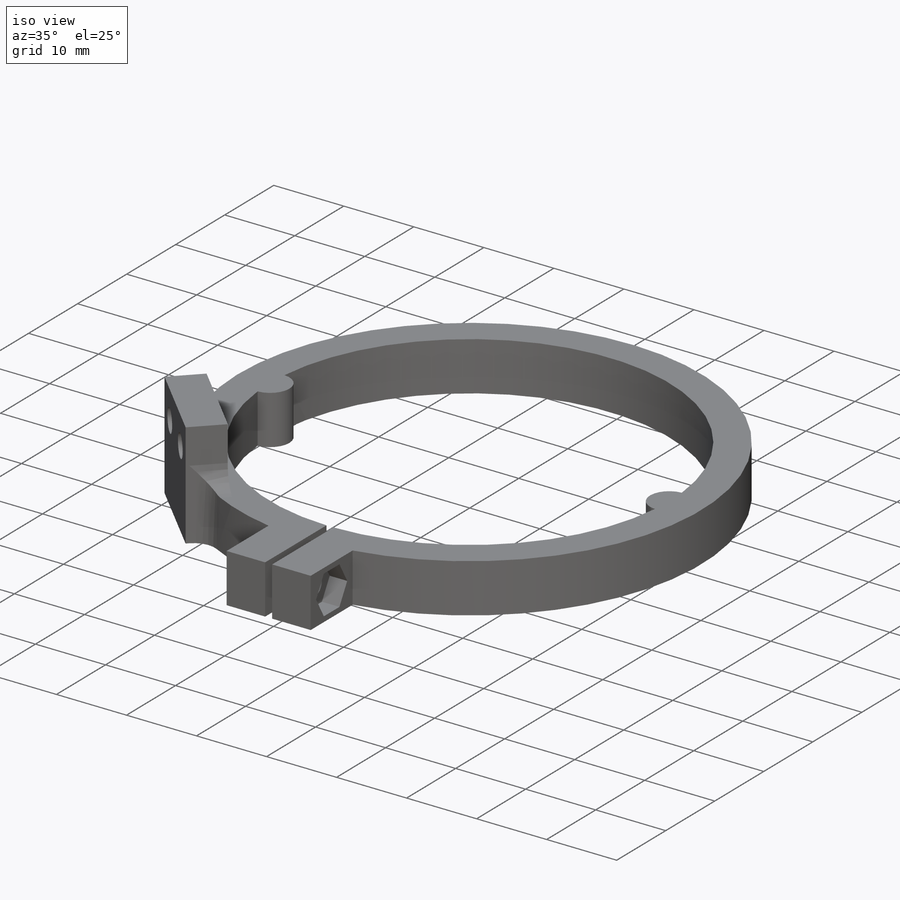
[diagram: iso view]
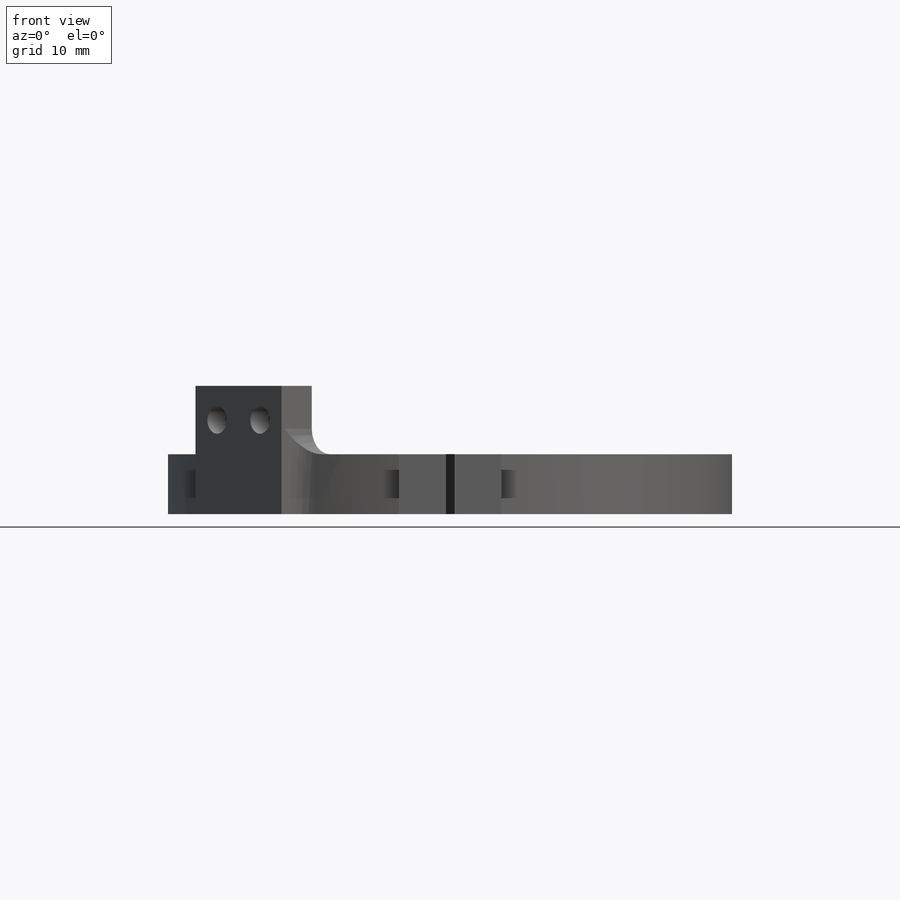
[diagram: front view]
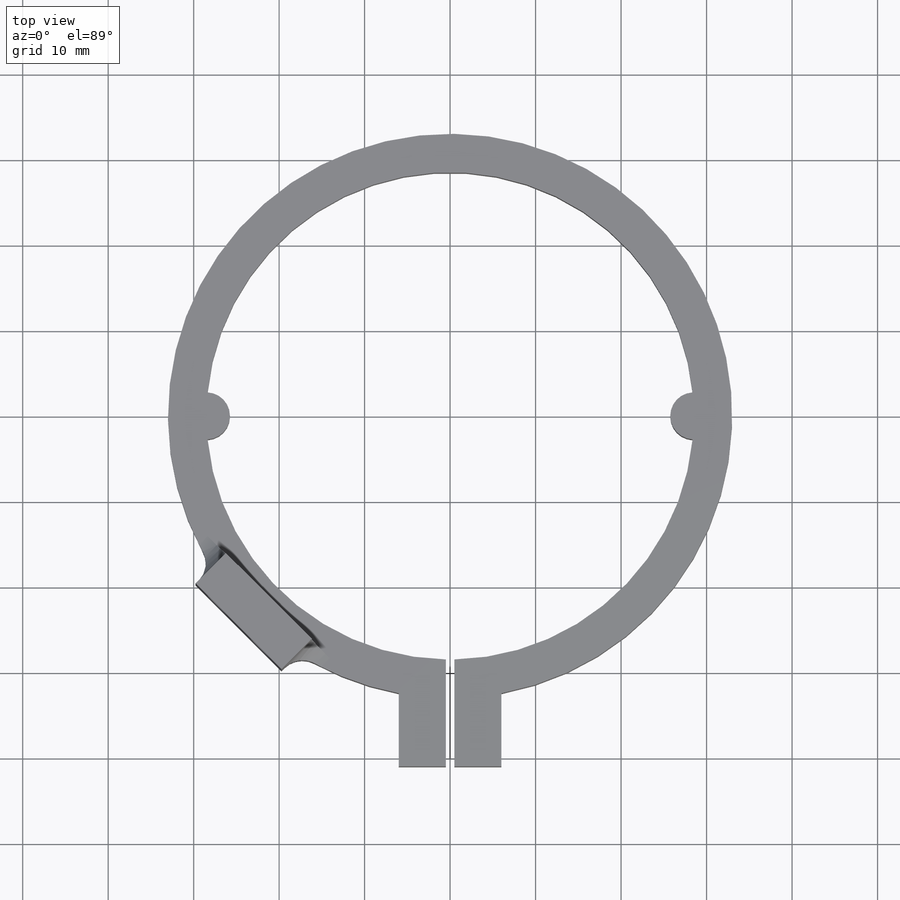
[diagram: top view]
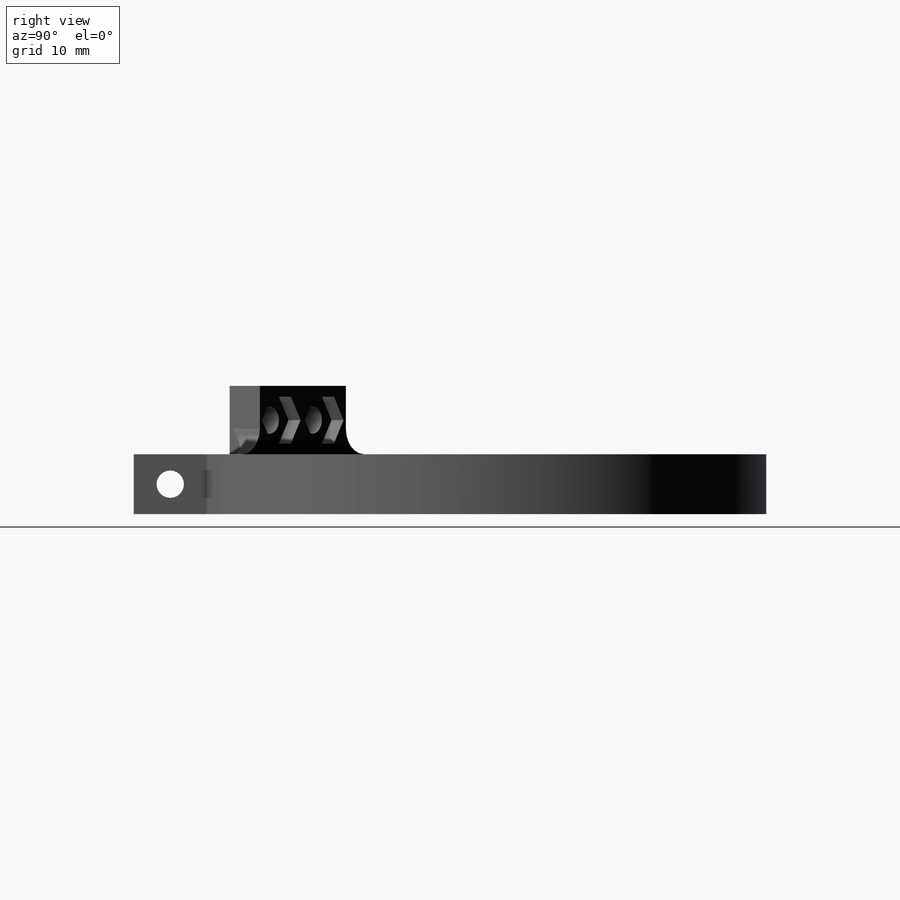
[diagram: right view]
SOLIDWORKS PART (.sldprt)
format: sldprt  version: not decoded by parser v0  size: 303,616 bytes
history: native  units: mm
features: sketch x10, cut_extrude x6, extrude x4, material x1, plane x1, fillet x1 (+12 scaffold rows collapsed)
feature tree (35):
  scaffold x12  (default folders/planes/origin — collapsed)
  material  "Material <not specified>"
  sketch  "Sketch1"  dims[D1=57.0mm D2=4.5mm]
  extrude  "Boss-Extrude1"  Depth=7mm
  sketch  "Sketch3"  dims[c1.D1=14.0mm c1.D2=12.0mm c2.D1=41.0mm c2.D3=12.0mm]
  extrude  "Boss-Extrude2"  [1 undecoded]
  sketch  "Sketch4"  dims[D1=6.0mm]
  cut_extrude  "Cut-Extrude2"  Depth=3mm
  sketch  "Sketch5"  dims[D1=3.2mm]
  cut_extrude  "Cut-Extrude3"  [1 undecoded]
  sketch  "Sketch6"  dims[D1=5.5mm]
  cut_extrude  "Cut-Extrude4"  Depth=2.5mm
  sketch  "Sketch2"  dims[D1=1.0mm D2=30.0mm]
  cut_extrude  "Cut-Extrude1"  [1 undecoded]
  sketch  "Sketch7"  dims[D1=5.5mm D2=5.5mm]
  extrude  "Boss-Extrude3"  [1 undecoded]
  sketch  "Sketch8"  dims[c1.D3=28.5mm c1.D1=14.224mm c1.D2=5.0mm c2.D3=~3.220618mm c3.D3=45.0deg c4.D3=~3.535534mm c5.D3=90.0deg c6.D3=30.0mm]
  extrude  "Boss-Extrude4"  Depth=15mm
  sketch  "Sketch9"  dims[c1.D1=3.2mm c1.D2=3.2mm c1.D4=3.2mm c1.D5=3.2mm c1.D3=4.0mm c2.D4=3.556mm c2.D5=10.668mm]
  cut_extrude  "Cut-Extrude5"  [1 undecoded]
  plane  "Plane1"  Offset=3mm
  sketch  "Sketch10"  dims[D1=5.5mm D2=5.5mm]
  cut_extrude  "Cut-Extrude6"  Depth=5mm
  fillet  "Fillet1"  Radius=3mm
decode coverage: 16 of 21 modeling features carry decoded parameters
note: ~ marks probable driven/reference dimensions
note: 5 parameter values undecoded
summary: no parameter record found for 5 features
note: suppression state not decoded; provenance and decode notes live in map.json
